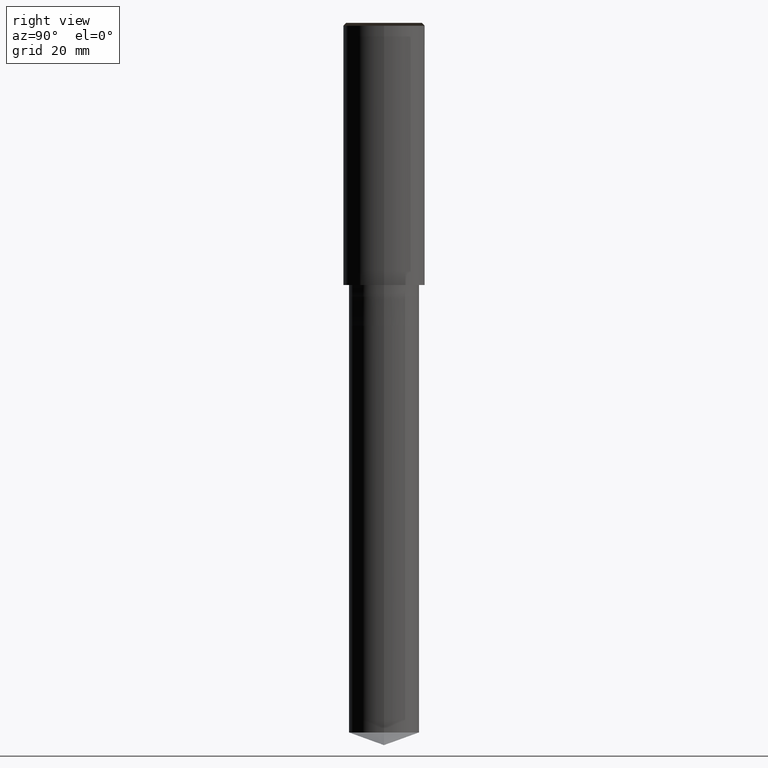
[diagram: clean part render]
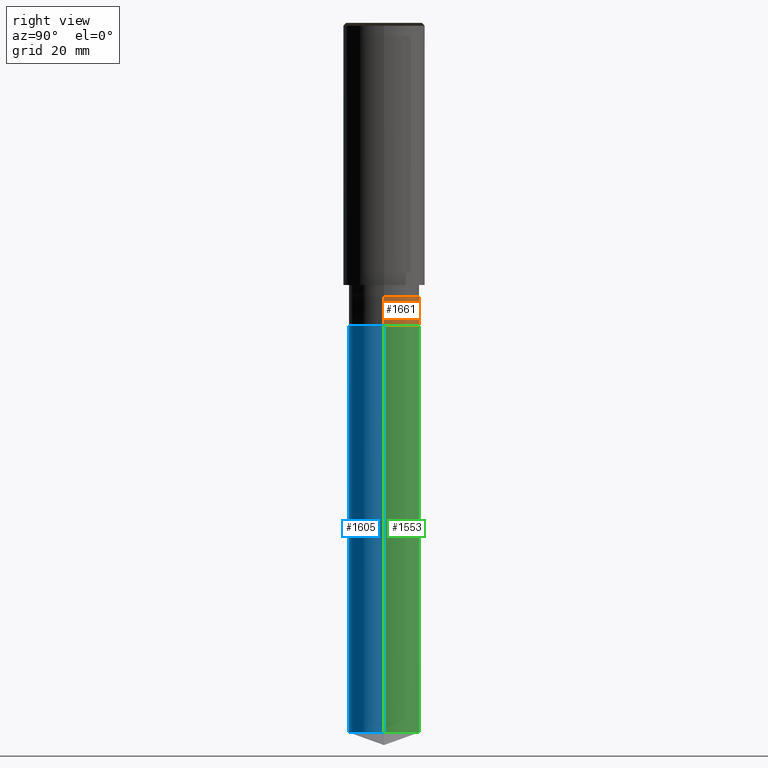
[diagram: same view with three faces highlighted in distinct colors, each labeled with its STEP entity id]
A machine part, right view with three faces highlighted in distinct colors.
Their STEP definitions:

[orange] entity #1661 — the highlighted face is a freeform B-spline surface patch.
#1460=CARTESIAN_POINT('',(6.0,0.0,-7.0));
#1461=CARTESIAN_POINT('',(6.0,6.0,-7.0));
#1462=CARTESIAN_POINT('',(0.0,6.0,-7.0));
#1463=CARTESIAN_POINT('',(-6.0,6.0,-7.0));
#1464=CARTESIAN_POINT('',(-6.0,0.0,-7.0));
#1472=CARTESIAN_POINT('',(6.0,0.0,-2.0));
#1473=CARTESIAN_POINT('',(6.0,6.0,-2.0));
#1474=CARTESIAN_POINT('',(0.0,6.0,-2.0));
#1475=CARTESIAN_POINT('',(-6.0,6.0,-2.0));
#1476=CARTESIAN_POINT('',(-6.0,0.0,-2.0));
#1642=(
BOUNDED_SURFACE()
B_SPLINE_SURFACE(1,2,(
(#1460,#1461,#1462,#1463,#1464),
(#1472,#1473,#1474,#1475,#1476)
), .UNSPECIFIED.,.F.,.F.,.F.)
B_SPLINE_SURFACE_WITH_KNOTS((2,2),(3,2,3),(
0.0,1.0),(
0.0,0.5,1.0), .UNSPECIFIED.)
GEOMETRIC_REPRESENTATION_ITEM()
RATIONAL_B_SPLINE_SURFACE(((1.0,0.707106781187,1.0,0.707106781187,1.0),
(1.0,0.707106781187,1.0,0.707106781187,1.0)
))
REPRESENTATION_ITEM('')
SURFACE()
);
#1643=(
BOUNDED_CURVE()
B_SPLINE_CURVE(2,(#1464,#1463,#1462,#1461,#1460),.UNSPECIFIED.,.F.,.F.)
B_SPLINE_CURVE_WITH_KNOTS((3,2,3),
(0.0,0.5,1.0),.UNSPECIFIED.)
CURVE()
GEOMETRIC_REPRESENTATION_ITEM()
RATIONAL_B_SPLINE_CURVE((1.0,0.707106781187,1.0,0.707106781187,1.0))
REPRESENTATION_ITEM('')
);
#1644=(
BOUNDED_CURVE()
B_SPLINE_CURVE(1,(#1460,#1472),.UNSPECIFIED.,.F.,.F.)
B_SPLINE_CURVE_WITH_KNOTS((2,2),
(0.0,1.0),.UNSPECIFIED.)
CURVE()
GEOMETRIC_REPRESENTATION_ITEM()
RATIONAL_B_SPLINE_CURVE((1.0,1.0))
REPRESENTATION_ITEM('')
);
#1645=(
BOUNDED_CURVE()
B_SPLINE_CURVE(2,(#1472,#1473,#1474,#1475,#1476),.UNSPECIFIED.,.F.,.F.)
B_SPLINE_CURVE_WITH_KNOTS((3,2,3),
(0.0,0.5,1.0),.UNSPECIFIED.)
CURVE()
GEOMETRIC_REPRESENTATION_ITEM()
RATIONAL_B_SPLINE_CURVE((1.0,0.707106781187,1.0,0.707106781187,1.0))
REPRESENTATION_ITEM('')
);
#1646=(
BOUNDED_CURVE()
B_SPLINE_CURVE(1,(#1476,#1464),.UNSPECIFIED.,.F.,.F.)
B_SPLINE_CURVE_WITH_KNOTS((2,2),
(0.0,1.0),.UNSPECIFIED.)
CURVE()
GEOMETRIC_REPRESENTATION_ITEM()
RATIONAL_B_SPLINE_CURVE((1.0,1.0))
REPRESENTATION_ITEM('')
);
#1647=VERTEX_POINT('',#1460);
#1648=VERTEX_POINT('',#1464);
#1649=VERTEX_POINT('',#1472);
#1650=VERTEX_POINT('',#1476);
#1651=EDGE_CURVE('',#1648,#1647,#1643,.T.);
#1652=EDGE_CURVE('',#1647,#1649,#1644,.T.);
#1653=EDGE_CURVE('',#1649,#1650,#1645,.T.);
#1654=EDGE_CURVE('',#1650,#1648,#1646,.T.);
#1655=ORIENTED_EDGE('',*,*,#1651,.T.);
#1656=ORIENTED_EDGE('',*,*,#1652,.T.);
#1657=ORIENTED_EDGE('',*,*,#1653,.T.);
#1658=ORIENTED_EDGE('',*,*,#1654,.T.);
#1659=EDGE_LOOP('',(#1655,#1656,#1657,#1658));
#1660=FACE_OUTER_BOUND('',#1659,.T.);
#1661=ADVANCED_FACE('',(#1660),#1642,.T.);

[blue] entity #1605 — the highlighted face is a freeform B-spline surface patch.
#1455=CARTESIAN_POINT('',(6.0,0.0,-76.816178594403));
#1459=CARTESIAN_POINT('',(-6.0,0.0,-76.816178594403));
#1460=CARTESIAN_POINT('',(6.0,0.0,-7.0));
#1464=CARTESIAN_POINT('',(-6.0,0.0,-7.0));
#1466=CARTESIAN_POINT('',(-6.0,-6.0,-76.816178594403));
#1467=CARTESIAN_POINT('',(0.0,-6.0,-76.816178594403));
#1468=CARTESIAN_POINT('',(6.0,-6.0,-76.816178594403));
#1469=CARTESIAN_POINT('',(-6.0,-6.0,-7.0));
#1470=CARTESIAN_POINT('',(0.0,-6.0,-7.0));
#1471=CARTESIAN_POINT('',(6.0,-6.0,-7.0));
#1586=(
BOUNDED_SURFACE()
B_SPLINE_SURFACE(1,2,(
(#1459,#1466,#1467,#1468,#1455),
(#1464,#1469,#1470,#1471,#1460)
), .UNSPECIFIED.,.F.,.F.,.F.)
B_SPLINE_SURFACE_WITH_KNOTS((2,2),(3,2,3),(
0.0,1.0),(
0.0,0.5,1.0), .UNSPECIFIED.)
GEOMETRIC_REPRESENTATION_ITEM()
RATIONAL_B_SPLINE_SURFACE(((1.0,0.707106781187,1.0,0.707106781187,1.0),
(1.0,0.707106781187,1.0,0.707106781187,1.0)
))
REPRESENTATION_ITEM('')
SURFACE()
);
#1587=(
BOUNDED_CURVE()
B_SPLINE_CURVE(2,(#1455,#1468,#1467,#1466,#1459),.UNSPECIFIED.,.F.,.F.)
B_SPLINE_CURVE_WITH_KNOTS((3,2,3),
(0.0,0.5,1.0),.UNSPECIFIED.)
CURVE()
GEOMETRIC_REPRESENTATION_ITEM()
RATIONAL_B_SPLINE_CURVE((1.0,0.707106781187,1.0,0.707106781187,1.0))
REPRESENTATION_ITEM('')
);
#1588=(
BOUNDED_CURVE()
B_SPLINE_CURVE(1,(#1459,#1464),.UNSPECIFIED.,.F.,.F.)
B_SPLINE_CURVE_WITH_KNOTS((2,2),
(0.0,1.0),.UNSPECIFIED.)
CURVE()
GEOMETRIC_REPRESENTATION_ITEM()
RATIONAL_B_SPLINE_CURVE((1.0,1.0))
REPRESENTATION_ITEM('')
);
#1589=(
BOUNDED_CURVE()
B_SPLINE_CURVE(2,(#1464,#1469,#1470,#1471,#1460),.UNSPECIFIED.,.F.,.F.)
B_SPLINE_CURVE_WITH_KNOTS((3,2,3),
(0.0,0.5,1.0),.UNSPECIFIED.)
CURVE()
GEOMETRIC_REPRESENTATION_ITEM()
RATIONAL_B_SPLINE_CURVE((1.0,0.707106781187,1.0,0.707106781187,1.0))
REPRESENTATION_ITEM('')
);
#1590=(
BOUNDED_CURVE()
B_SPLINE_CURVE(1,(#1460,#1455),.UNSPECIFIED.,.F.,.F.)
B_SPLINE_CURVE_WITH_KNOTS((2,2),
(0.0,1.0),.UNSPECIFIED.)
CURVE()
GEOMETRIC_REPRESENTATION_ITEM()
RATIONAL_B_SPLINE_CURVE((1.0,1.0))
REPRESENTATION_ITEM('')
);
#1591=VERTEX_POINT('',#1455);
#1592=VERTEX_POINT('',#1459);
#1593=VERTEX_POINT('',#1460);
#1594=VERTEX_POINT('',#1464);
#1595=EDGE_CURVE('',#1591,#1592,#1587,.T.);
#1596=EDGE_CURVE('',#1592,#1594,#1588,.T.);
#1597=EDGE_CURVE('',#1594,#1593,#1589,.T.);
#1598=EDGE_CURVE('',#1593,#1591,#1590,.T.);
#1599=ORIENTED_EDGE('',*,*,#1595,.T.);
#1600=ORIENTED_EDGE('',*,*,#1596,.T.);
#1601=ORIENTED_EDGE('',*,*,#1597,.T.);
#1602=ORIENTED_EDGE('',*,*,#1598,.T.);
#1603=EDGE_LOOP('',(#1599,#1600,#1601,#1602));
#1604=FACE_OUTER_BOUND('',#1603,.T.);
#1605=ADVANCED_FACE('',(#1604),#1586,.T.);

[green] entity #1553 — the highlighted face is a freeform B-spline surface patch.
#1455=CARTESIAN_POINT('',(6.0,0.0,-76.816178594403));
#1456=CARTESIAN_POINT('',(6.0,6.0,-76.816178594403));
#1457=CARTESIAN_POINT('',(0.0,6.0,-76.816178594403));
#1458=CARTESIAN_POINT('',(-6.0,6.0,-76.816178594403));
#1459=CARTESIAN_POINT('',(-6.0,0.0,-76.816178594403));
#1460=CARTESIAN_POINT('',(6.0,0.0,-7.0));
#1461=CARTESIAN_POINT('',(6.0,6.0,-7.0));
#1462=CARTESIAN_POINT('',(0.0,6.0,-7.0));
#1463=CARTESIAN_POINT('',(-6.0,6.0,-7.0));
#1464=CARTESIAN_POINT('',(-6.0,0.0,-7.0));
#1534=(
BOUNDED_SURFACE()
B_SPLINE_SURFACE(1,2,(
(#1455,#1456,#1457,#1458,#1459),
(#1460,#1461,#1462,#1463,#1464)
), .UNSPECIFIED.,.F.,.F.,.F.)
B_SPLINE_SURFACE_WITH_KNOTS((2,2),(3,2,3),(
0.0,1.0),(
0.0,0.5,1.0), .UNSPECIFIED.)
GEOMETRIC_REPRESENTATION_ITEM()
RATIONAL_B_SPLINE_SURFACE(((1.0,0.707106781187,1.0,0.707106781187,1.0),
(1.0,0.707106781187,1.0,0.707106781187,1.0)
))
REPRESENTATION_ITEM('')
SURFACE()
);
#1535=(
BOUNDED_CURVE()
B_SPLINE_CURVE(2,(#1459,#1458,#1457,#1456,#1455),.UNSPECIFIED.,.F.,.F.)
B_SPLINE_CURVE_WITH_KNOTS((3,2,3),
(0.0,0.5,1.0),.UNSPECIFIED.)
CURVE()
GEOMETRIC_REPRESENTATION_ITEM()
RATIONAL_B_SPLINE_CURVE((1.0,0.707106781187,1.0,0.707106781187,1.0))
REPRESENTATION_ITEM('')
);
#1536=(
BOUNDED_CURVE()
B_SPLINE_CURVE(1,(#1455,#1460),.UNSPECIFIED.,.F.,.F.)
B_SPLINE_CURVE_WITH_KNOTS((2,2),
(0.0,1.0),.UNSPECIFIED.)
CURVE()
GEOMETRIC_REPRESENTATION_ITEM()
RATIONAL_B_SPLINE_CURVE((1.0,1.0))
REPRESENTATION_ITEM('')
);
#1537=(
BOUNDED_CURVE()
B_SPLINE_CURVE(2,(#1460,#1461,#1462,#1463,#1464),.UNSPECIFIED.,.F.,.F.)
B_SPLINE_CURVE_WITH_KNOTS((3,2,3),
(0.0,0.5,1.0),.UNSPECIFIED.)
CURVE()
GEOMETRIC_REPRESENTATION_ITEM()
RATIONAL_B_SPLINE_CURVE((1.0,0.707106781187,1.0,0.707106781187,1.0))
REPRESENTATION_ITEM('')
);
#1538=(
BOUNDED_CURVE()
B_SPLINE_CURVE(1,(#1464,#1459),.UNSPECIFIED.,.F.,.F.)
B_SPLINE_CURVE_WITH_KNOTS((2,2),
(0.0,1.0),.UNSPECIFIED.)
CURVE()
GEOMETRIC_REPRESENTATION_ITEM()
RATIONAL_B_SPLINE_CURVE((1.0,1.0))
REPRESENTATION_ITEM('')
);
#1539=VERTEX_POINT('',#1455);
#1540=VERTEX_POINT('',#1459);
#1541=VERTEX_POINT('',#1460);
#1542=VERTEX_POINT('',#1464);
#1543=EDGE_CURVE('',#1540,#1539,#1535,.T.);
#1544=EDGE_CURVE('',#1539,#1541,#1536,.T.);
#1545=EDGE_CURVE('',#1541,#1542,#1537,.T.);
#1546=EDGE_CURVE('',#1542,#1540,#1538,.T.);
#1547=ORIENTED_EDGE('',*,*,#1543,.T.);
#1548=ORIENTED_EDGE('',*,*,#1544,.T.);
#1549=ORIENTED_EDGE('',*,*,#1545,.T.);
#1550=ORIENTED_EDGE('',*,*,#1546,.T.);
#1551=EDGE_LOOP('',(#1547,#1548,#1549,#1550));
#1552=FACE_OUTER_BOUND('',#1551,.T.);
#1553=ADVANCED_FACE('',(#1552),#1534,.T.);